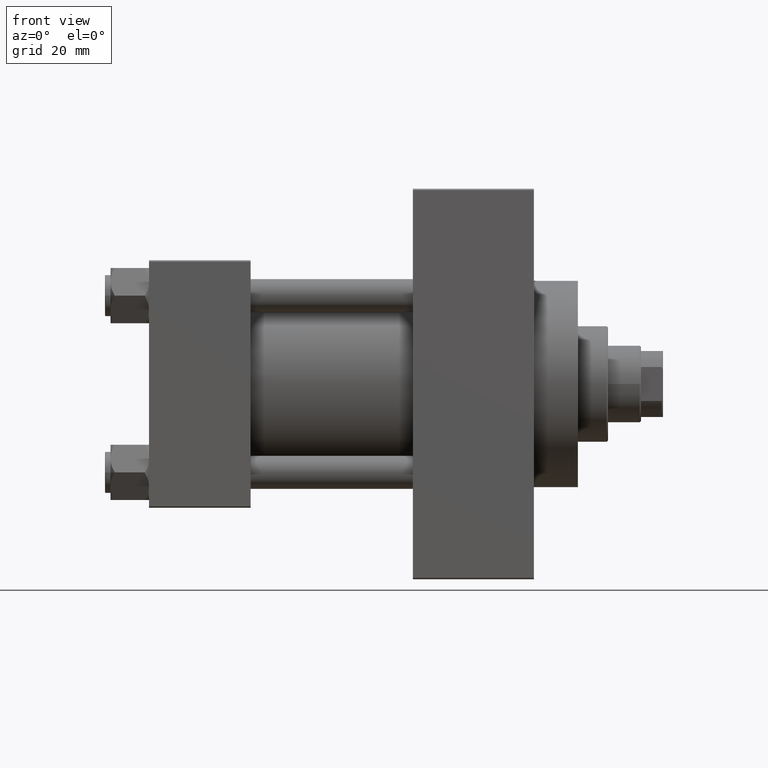
[diagram: clean part render]
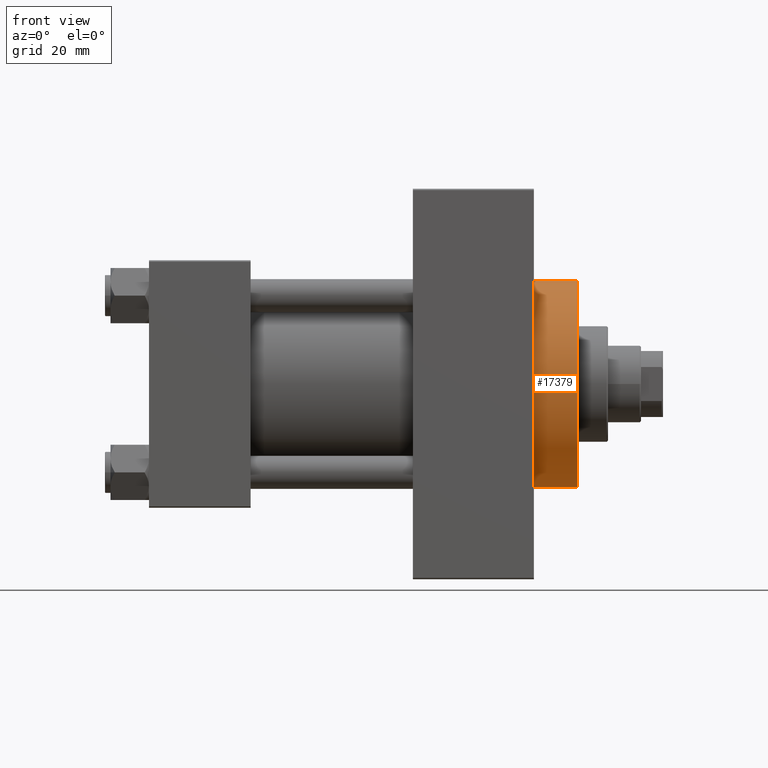
[diagram: same view with one face highlighted and labeled with its STEP entity id]
A machine part, front view. The second image highlights one B-rep face of the part: STEP entity #17379.
In plain terms, the highlighted cylindrical surface (partial cylindrical patch) has radius 37.5 mm, axis along (-1, -0, -0).
Its self-contained STEP definition (entity closure, byte-faithful):
#596 = ORIENTED_EDGE ( 'NONE', *, *, #15445, .F. ) ;
#2211 = CARTESIAN_POINT ( 'NONE',  ( 140.0000000000000000, 0.000000000000000000, 37.50000000000000711 ) ) ;
#3859 = DIRECTION ( 'NONE',  ( -1.000000000000000000, -0.000000000000000000, -0.000000000000000000 ) ) ;
#7797 = EDGE_LOOP ( 'NONE', ( #24846, #596, #13084, #14281 ) ) ;
#11288 = EDGE_CURVE ( 'NONE', #14409, #14398, #12667, .T. ) ;
#11848 = DIRECTION ( 'NONE',  ( 0.000000000000000000, 0.000000000000000000, 1.000000000000000000 ) ) ;
#12667 = LINE ( 'NONE', #20170, #27750 ) ;
#13084 = ORIENTED_EDGE ( 'NONE', *, *, #34993, .T. ) ;
#14281 = ORIENTED_EDGE ( 'NONE', *, *, #27441, .T. ) ;
#14288 = CARTESIAN_POINT ( 'NONE',  ( 156.0000000000000284, 0.000000000000000000, 0.000000000000000000 ) ) ;
#14398 = VERTEX_POINT ( 'NONE', #25509 ) ;
#14409 = VERTEX_POINT ( 'NONE', #21036 ) ;
#14533 = DIRECTION ( 'NONE',  ( 0.000000000000000000, 0.000000000000000000, -1.000000000000000000 ) ) ;
#15445 = EDGE_CURVE ( 'NONE', #48426, #14409, #30892, .T. ) ;
#16147 = DIRECTION ( 'NONE',  ( 0.000000000000000000, 0.000000000000000000, -1.000000000000000000 ) ) ;
#16382 = DIRECTION ( 'NONE',  ( 1.000000000000000000, 0.000000000000000000, 0.000000000000000000 ) ) ;
#17379 = ADVANCED_FACE ( 'NONE', ( #26063 ), #29813, .T. ) ;
#20170 = CARTESIAN_POINT ( 'NONE',  ( 156.0000000000000284, 4.592425496802575156E-15, -37.50000000000000711 ) ) ;
#20438 = CARTESIAN_POINT ( 'NONE',  ( 156.0000000000000284, 0.000000000000000000, 37.50000000000000711 ) ) ;
#20914 = CIRCLE ( 'NONE', #32048, 37.50000000000000711 ) ;
#21036 = CARTESIAN_POINT ( 'NONE',  ( 156.0000000000000284, 4.592425496802575156E-15, -37.50000000000000711 ) ) ;
#22260 = CARTESIAN_POINT ( 'NONE',  ( 156.0000000000000284, 0.000000000000000000, 37.50000000000000711 ) ) ;
#24334 = VERTEX_POINT ( 'NONE', #2211 ) ;
#24846 = ORIENTED_EDGE ( 'NONE', *, *, #11288, .F. ) ;
#25509 = CARTESIAN_POINT ( 'NONE',  ( 140.0000000000000000, 4.592425496802575156E-15, -37.50000000000000711 ) ) ;
#25751 = DIRECTION ( 'NONE',  ( -1.000000000000000000, -0.000000000000000000, -0.000000000000000000 ) ) ;
#26063 = FACE_OUTER_BOUND ( 'NONE', #7797, .T. ) ;
#26233 = DIRECTION ( 'NONE',  ( 1.000000000000000000, 0.000000000000000000, 0.000000000000000000 ) ) ;
#27441 = EDGE_CURVE ( 'NONE', #24334, #14398, #20914, .T. ) ;
#27750 = VECTOR ( 'NONE', #27881, 1000.000000000000000 ) ;
#27881 = DIRECTION ( 'NONE',  ( -1.000000000000000000, -0.000000000000000000, -0.000000000000000000 ) ) ;
#28594 = AXIS2_PLACEMENT_3D ( 'NONE', #38037, #3859, #11848 ) ;
#29813 = CYLINDRICAL_SURFACE ( 'NONE', #28594, 37.50000000000000711 ) ;
#30153 = VECTOR ( 'NONE', #25751, 1000.000000000000000 ) ;
#30892 = CIRCLE ( 'NONE', #43631, 37.50000000000000711 ) ;
#32048 = AXIS2_PLACEMENT_3D ( 'NONE', #35822, #16382, #16147 ) ;
#34993 = EDGE_CURVE ( 'NONE', #48426, #24334, #48425, .T. ) ;
#35822 = CARTESIAN_POINT ( 'NONE',  ( 140.0000000000000000, 0.000000000000000000, 0.000000000000000000 ) ) ;
#38037 = CARTESIAN_POINT ( 'NONE',  ( 156.0000000000000284, 0.000000000000000000, 0.000000000000000000 ) ) ;
#43631 = AXIS2_PLACEMENT_3D ( 'NONE', #14288, #26233, #14533 ) ;
#48425 = LINE ( 'NONE', #22260, #30153 ) ;
#48426 = VERTEX_POINT ( 'NONE', #20438 ) ;